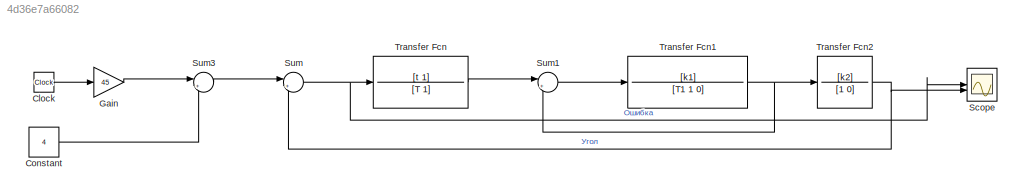
MODEL slx_4d36e7a66082
KIND model
CONFIG AbsTol = auto
CONFIG EnableMultiTasking = off
CONFIG FixedStep = auto
CONFIG MaxStep = auto
CONFIG MinStep = auto
CONFIG RelTol = 1e-3
CONFIG SampleTimeConstraint = Unconstrained
CONFIG SolverName = VariableStepAuto
CONFIG StartTime = 0.0
CONFIG StopTime = 10.0
BLOCK [Clock] Clock
BLOCK [Constant] Constant
  Value = 4
BLOCK [Gain] Gain
  Gain = 45
BLOCK [Scope] Scope
  Floating = off
  NumInputPorts = 2
  ScopeSpecificationString = Simulink.scopes.TimeScopeBlockCfg('CurrentConfiguration', extmgr.ConfigurationSet(extmgr.Configuration('Core','General UI',true),extmgr.Configuration('Core','Source UI',true),extmgr.Configuration('Sources','WiredSimulink',true),extmgr.Configuration('Visuals','Time Domain',true,'SerializedDisplays',{struct('MinYLimReal','-57.35736','MaxYLimReal','509.70657','YLabelReal','','MinYLimMag','0.00000','M...<+1343ch>
BLOCK [Sum] Sum
  Inputs = |+-
BLOCK [Sum] Sum1
  Inputs = |+-
BLOCK [Sum] Sum3
  Inputs = |++
BLOCK [TransferFcn] Transfer Fcn
  Denominator = [T 1]
  Numerator = [t 1]
BLOCK [TransferFcn] Transfer Fcn1
  Denominator = [T1 1 0]
  Numerator = [k1]
BLOCK [TransferFcn] Transfer Fcn2
  Denominator = [1 0]
  Numerator = [k2]
LINE Clock:1 -> Gain:1
LINE Constant:1 -> Sum3:2
LINE Gain:1 -> Sum3:1
LINE Sum1:1 -> Transfer Fcn1:1
LINE Sum3:1 -> Sum:1
NET Sum:1 -> Scope:1, Transfer Fcn:1
NET Transfer Fcn1:1 -> Sum1:2, Transfer Fcn2:1
NET Transfer Fcn2:1 -> Scope:2, Sum:2
LINE Transfer Fcn:1 -> Sum1:1
note: NET lines group one-source signal fan-out (src -> all destinations, sorted); 1:1 wires keep LINE
